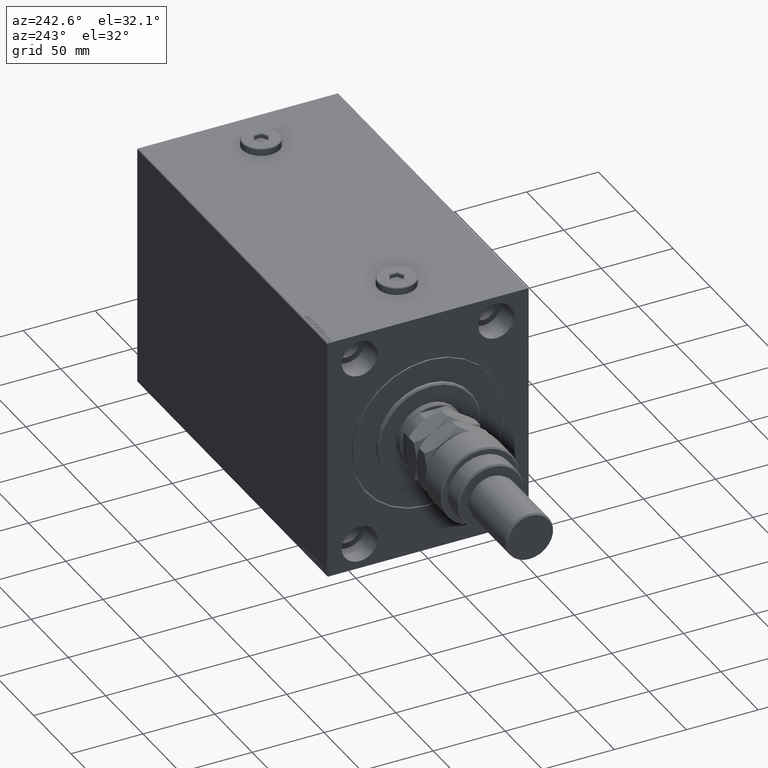
[diagram: clean part render]
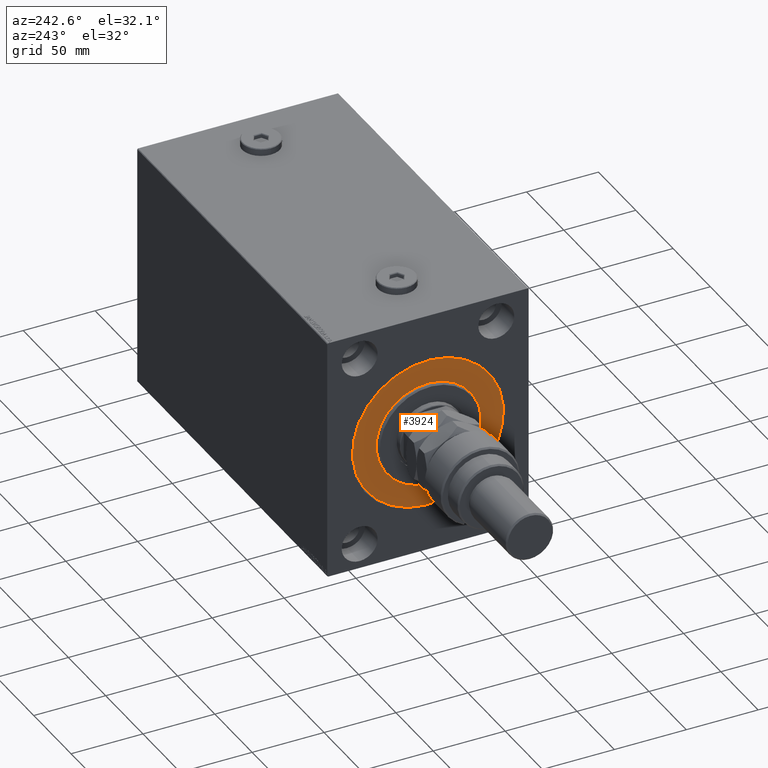
[diagram: same view with one face highlighted and labeled with its STEP entity id]
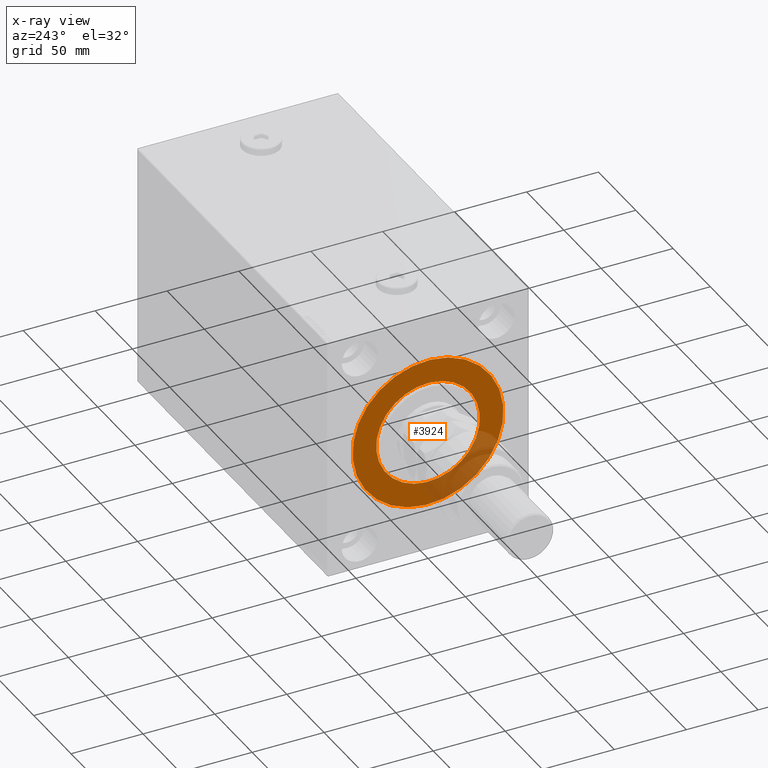
[diagram: x-ray of the same camera — body ghosted, the highlighted face saturated]
A machine part, auxiliary view. The second image highlights one B-rep face of the part: STEP entity #3924.
The next image is the same camera in x-ray: the body ghosted, the highlighted face saturated — about 20% of this face is hidden behind the body in this view.
In plain terms, the highlighted planar face has unit normal (1, 0, -0).
Its self-contained STEP definition (entity closure, byte-faithful):
#40 = ORIENTED_EDGE ( 'NONE', *, *, #34981, .F. ) ;
#941 = EDGE_LOOP ( 'NONE', ( #39253, #28563 ) ) ;
#3924 = ADVANCED_FACE ( 'NONE', ( #32685, #9982 ), #40500, .F. ) ;
#4835 = CARTESIAN_POINT ( 'NONE',  ( 0.000000000000000000, 4.408728476930470856E-15, -36.00000000000000000 ) ) ;
#6903 = DIRECTION ( 'NONE',  ( 0.000000000000000000, 0.000000000000000000, -1.000000000000000000 ) ) ;
#7058 = DIRECTION ( 'NONE',  ( 0.000000000000000000, 0.000000000000000000, 1.000000000000000000 ) ) ;
#7721 = EDGE_CURVE ( 'NONE', #27950, #17667, #21506, .T. ) ;
#9982 = FACE_OUTER_BOUND ( 'NONE', #941, .T. ) ;
#10403 = CARTESIAN_POINT ( 'NONE',  ( 0.000000000000000000, 0.000000000000000000, 0.000000000000000000 ) ) ;
#12345 = AXIS2_PLACEMENT_3D ( 'NONE', #25694, #25198, #6903 ) ;
#14073 = DIRECTION ( 'NONE',  ( 0.000000000000000000, 0.000000000000000000, 1.000000000000000000 ) ) ;
#14471 = AXIS2_PLACEMENT_3D ( 'NONE', #10403, #22377, #14073 ) ;
#15210 = CIRCLE ( 'NONE', #42482, 36.00000000000000000 ) ;
#15479 = DIRECTION ( 'NONE',  ( 0.000000000000000000, 0.000000000000000000, -1.000000000000000000 ) ) ;
#16393 = AXIS2_PLACEMENT_3D ( 'NONE', #34509, #44356, #30604 ) ;
#17667 = VERTEX_POINT ( 'NONE', #18437 ) ;
#17961 = EDGE_CURVE ( 'NONE', #37053, #29975, #32611, .T. ) ;
#18437 = CARTESIAN_POINT ( 'NONE',  ( 0.000000000000000000, 0.000000000000000000, -52.49999999999999289 ) ) ;
#21506 = CIRCLE ( 'NONE', #14471, 52.49999999999999289 ) ;
#22377 = DIRECTION ( 'NONE',  ( -1.000000000000000000, 0.000000000000000000, 0.000000000000000000 ) ) ;
#22568 = DIRECTION ( 'NONE',  ( 1.000000000000000000, -0.000000000000000000, 0.000000000000000000 ) ) ;
#22946 = EDGE_LOOP ( 'NONE', ( #29181, #40 ) ) ;
#23281 = CARTESIAN_POINT ( 'NONE',  ( 0.000000000000000000, 0.000000000000000000, 0.000000000000000000 ) ) ;
#25198 = DIRECTION ( 'NONE',  ( 1.000000000000000000, -0.000000000000000000, 0.000000000000000000 ) ) ;
#25601 = DIRECTION ( 'NONE',  ( -1.000000000000000000, 0.000000000000000000, 0.000000000000000000 ) ) ;
#25694 = CARTESIAN_POINT ( 'NONE',  ( 0.000000000000000000, 0.000000000000000000, 0.000000000000000000 ) ) ;
#27950 = VERTEX_POINT ( 'NONE', #45414 ) ;
#28563 = ORIENTED_EDGE ( 'NONE', *, *, #7721, .F. ) ;
#29181 = ORIENTED_EDGE ( 'NONE', *, *, #17961, .F. ) ;
#29975 = VERTEX_POINT ( 'NONE', #4835 ) ;
#30604 = DIRECTION ( 'NONE',  ( 0.000000000000000000, 0.000000000000000000, 1.000000000000000000 ) ) ;
#31185 = CIRCLE ( 'NONE', #16393, 52.49999999999999289 ) ;
#32611 = CIRCLE ( 'NONE', #12345, 36.00000000000000000 ) ;
#32667 = CARTESIAN_POINT ( 'NONE',  ( 0.000000000000000000, 0.000000000000000000, 36.00000000000000000 ) ) ;
#32685 = FACE_BOUND ( 'NONE', #22946, .T. ) ;
#34509 = CARTESIAN_POINT ( 'NONE',  ( 0.000000000000000000, 0.000000000000000000, 0.000000000000000000 ) ) ;
#34981 = EDGE_CURVE ( 'NONE', #29975, #37053, #15210, .T. ) ;
#36127 = AXIS2_PLACEMENT_3D ( 'NONE', #39766, #25601, #7058 ) ;
#37053 = VERTEX_POINT ( 'NONE', #32667 ) ;
#39253 = ORIENTED_EDGE ( 'NONE', *, *, #47664, .F. ) ;
#39766 = CARTESIAN_POINT ( 'NONE',  ( 0.000000000000000000, 0.000000000000000000, 0.000000000000000000 ) ) ;
#40500 = PLANE ( 'NONE',  #36127 ) ;
#42482 = AXIS2_PLACEMENT_3D ( 'NONE', #23281, #22568, #15479 ) ;
#44356 = DIRECTION ( 'NONE',  ( -1.000000000000000000, 0.000000000000000000, 0.000000000000000000 ) ) ;
#45414 = CARTESIAN_POINT ( 'NONE',  ( 0.000000000000000000, 6.429395695523603167E-15, 52.49999999999999289 ) ) ;
#47664 = EDGE_CURVE ( 'NONE', #17667, #27950, #31185, .T. ) ;